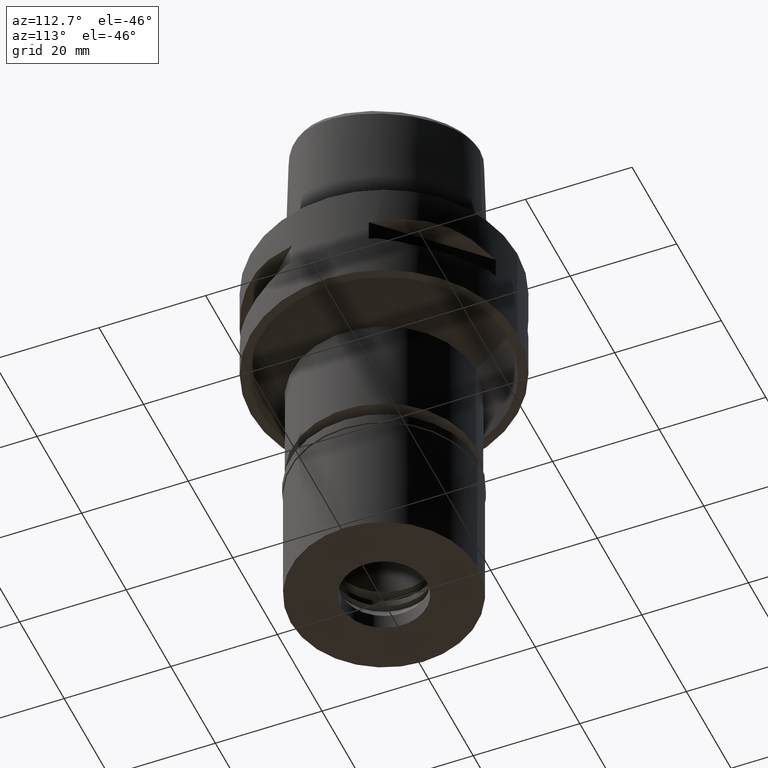
[diagram: clean part render]
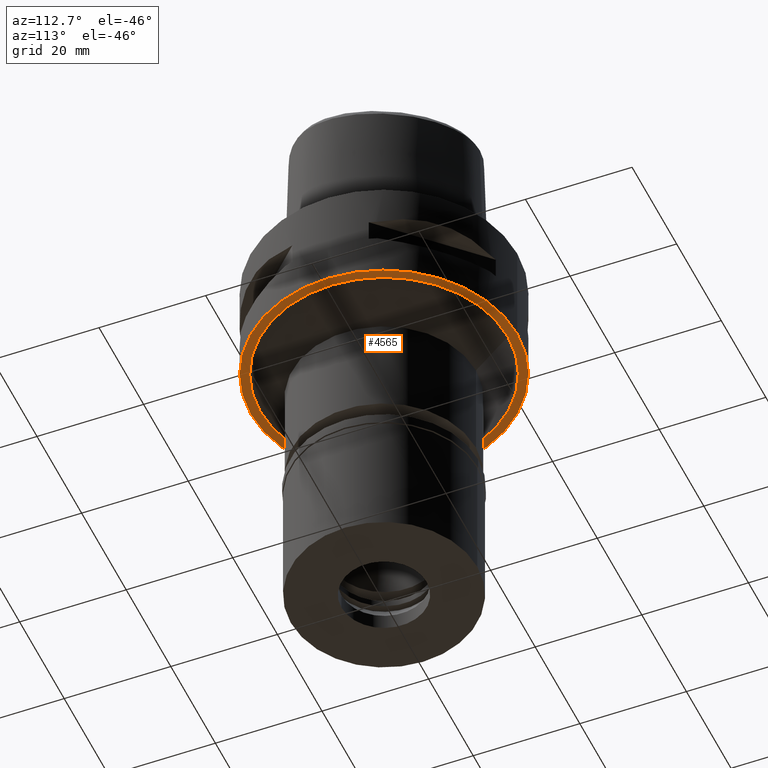
[diagram: same view with one face highlighted and labeled with its STEP entity id]
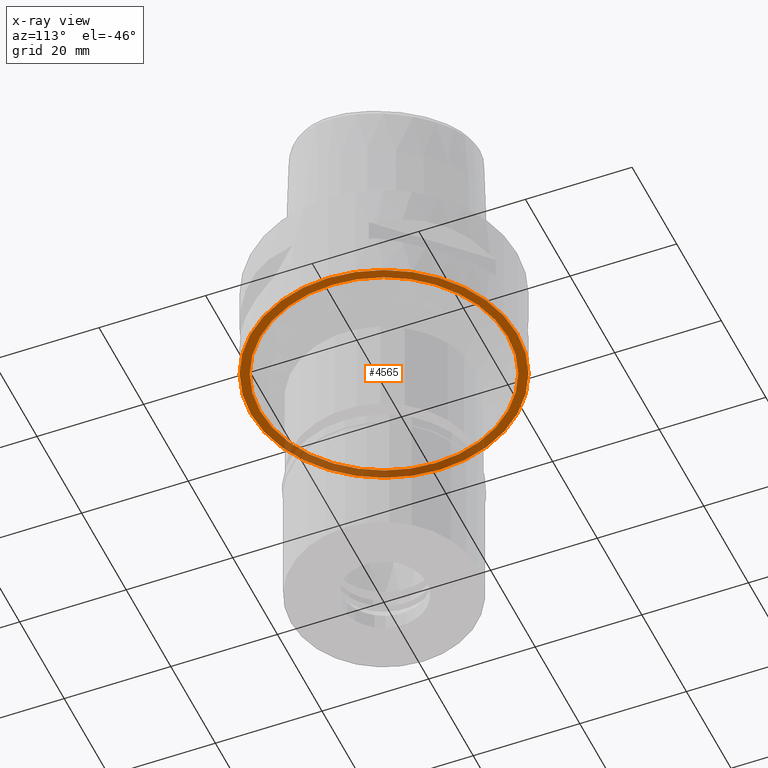
[diagram: x-ray of the same camera — body ghosted, the highlighted face saturated]
A machine part, auxiliary view. The second image highlights one B-rep face of the part: STEP entity #4565.
The next image is the same camera in x-ray: the body ghosted, the highlighted face saturated — about 25% of this face is hidden behind the body in this view.
In plain terms, the highlighted planar face has unit normal (0, 0, -1).
Its self-contained STEP definition (entity closure, byte-faithful):
#63 = EDGE_CURVE ( 'NONE', #3224, #4432, #4843, .T. ) ;
#141 = DIRECTION ( 'NONE',  ( 0.0000000000000000000, -1.000000000000000000, 0.0000000000000000000 ) ) ;
#539 = DIRECTION ( 'NONE',  ( 0.0000000000000000000, 0.0000000000000000000, 1.000000000000000000 ) ) ;
#627 = DIRECTION ( 'NONE',  ( 0.0000000000000000000, 0.0000000000000000000, -1.000000000000000000 ) ) ;
#688 = PLANE ( 'NONE',  #1445 ) ;
#712 = CARTESIAN_POINT ( 'NONE',  ( 0.0000000000000000000, 25.00000000000000000, -20.00000000000000000 ) ) ;
#1048 = AXIS2_PLACEMENT_3D ( 'NONE', #2827, #539, #141 ) ;
#1158 = DIRECTION ( 'NONE',  ( 0.0000000000000000000, -1.000000000000000000, 0.0000000000000000000 ) ) ;
#1445 = AXIS2_PLACEMENT_3D ( 'NONE', #1781, #4505, #3346 ) ;
#1726 = ORIENTED_EDGE ( 'NONE', *, *, #2103, .F. ) ;
#1728 = CARTESIAN_POINT ( 'NONE',  ( 0.0000000000000000000, 0.0000000000000000000, -20.00000000000000000 ) ) ;
#1749 = VERTEX_POINT ( 'NONE', #2937 ) ;
#1752 = CARTESIAN_POINT ( 'NONE',  ( 0.0000000000000000000, 1.263835496719999960E-14, -20.00000000000000000 ) ) ;
#1781 = CARTESIAN_POINT ( 'NONE',  ( 0.0000000000000000000, 0.0000000000000000000, -20.00000000000000000 ) ) ;
#2103 = EDGE_CURVE ( 'NONE', #1749, #4052, #4780, .T. ) ;
#2423 = ORIENTED_EDGE ( 'NONE', *, *, #4828, .F. ) ;
#2517 = DIRECTION ( 'NONE',  ( 0.0000000000000000000, 0.0000000000000000000, 1.000000000000000000 ) ) ;
#2540 = DIRECTION ( 'NONE',  ( 0.0000000000000000000, 1.000000000000000000, 0.0000000000000000000 ) ) ;
#2827 = CARTESIAN_POINT ( 'NONE',  ( 0.0000000000000000000, 1.263835496719999960E-14, -20.00000000000000000 ) ) ;
#2930 = EDGE_LOOP ( 'NONE', ( #1726, #2423 ) ) ;
#2937 = CARTESIAN_POINT ( 'NONE',  ( 0.0000000000000000000, 23.25000000000000000, -20.00000000000000000 ) ) ;
#2985 = FACE_BOUND ( 'NONE', #2930, .T. ) ;
#3005 = FACE_OUTER_BOUND ( 'NONE', #4254, .T. ) ;
#3040 = AXIS2_PLACEMENT_3D ( 'NONE', #3055, #4557, #1158 ) ;
#3055 = CARTESIAN_POINT ( 'NONE',  ( 0.0000000000000000000, 0.0000000000000000000, -20.00000000000000000 ) ) ;
#3224 = VERTEX_POINT ( 'NONE', #712 ) ;
#3346 = DIRECTION ( 'NONE',  ( 0.0000000000000000000, -1.000000000000000000, 0.0000000000000000000 ) ) ;
#3355 = AXIS2_PLACEMENT_3D ( 'NONE', #1752, #2517, #4042 ) ;
#3820 = CIRCLE ( 'NONE', #1048, 25.00000000000000000 ) ;
#4042 = DIRECTION ( 'NONE',  ( 0.0000000000000000000, 1.000000000000000000, 0.0000000000000000000 ) ) ;
#4052 = VERTEX_POINT ( 'NONE', #4681 ) ;
#4167 = ORIENTED_EDGE ( 'NONE', *, *, #4390, .F. ) ;
#4195 = ORIENTED_EDGE ( 'NONE', *, *, #63, .F. ) ;
#4254 = EDGE_LOOP ( 'NONE', ( #4195, #4167 ) ) ;
#4390 = EDGE_CURVE ( 'NONE', #4432, #3224, #3820, .T. ) ;
#4432 = VERTEX_POINT ( 'NONE', #4722 ) ;
#4469 = AXIS2_PLACEMENT_3D ( 'NONE', #1728, #627, #2540 ) ;
#4505 = DIRECTION ( 'NONE',  ( 0.0000000000000000000, 0.0000000000000000000, -1.000000000000000000 ) ) ;
#4557 = DIRECTION ( 'NONE',  ( 0.0000000000000000000, 0.0000000000000000000, -1.000000000000000000 ) ) ;
#4565 = ADVANCED_FACE ( 'NONE', ( #3005, #2985 ), #688, .T. ) ;
#4681 = CARTESIAN_POINT ( 'NONE',  ( 0.0000000000000000000, -23.25000000000000000, -20.00000000000000000 ) ) ;
#4683 = CIRCLE ( 'NONE', #3040, 23.25000000000000000 ) ;
#4722 = CARTESIAN_POINT ( 'NONE',  ( 0.0000000000000000000, -25.00000000000000000, -20.00000000000000000 ) ) ;
#4780 = CIRCLE ( 'NONE', #4469, 23.25000000000000000 ) ;
#4828 = EDGE_CURVE ( 'NONE', #4052, #1749, #4683, .T. ) ;
#4843 = CIRCLE ( 'NONE', #3355, 25.00000000000000000 ) ;